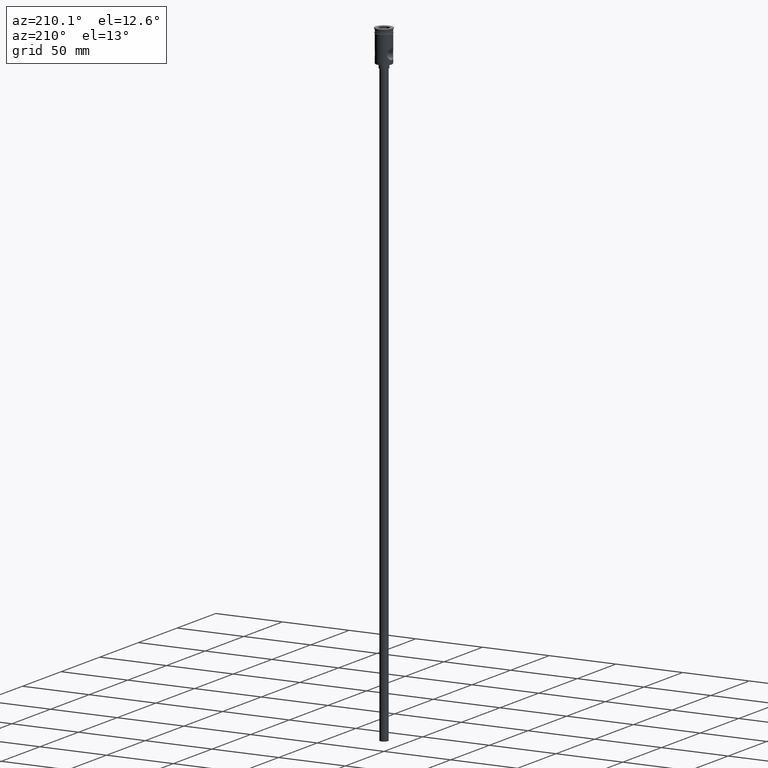
[diagram: clean part render]
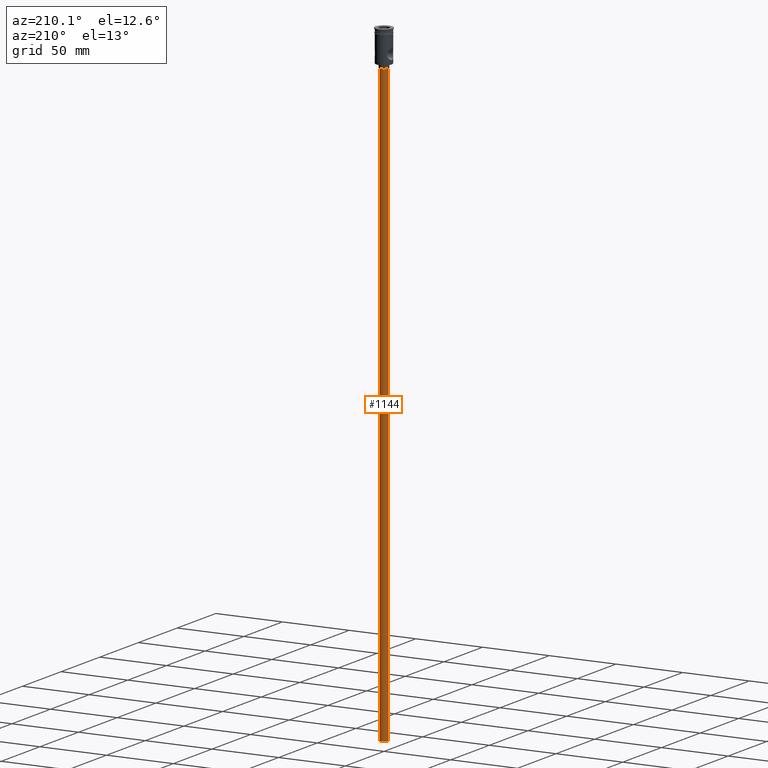
[diagram: same view with one face highlighted and labeled with its STEP entity id]
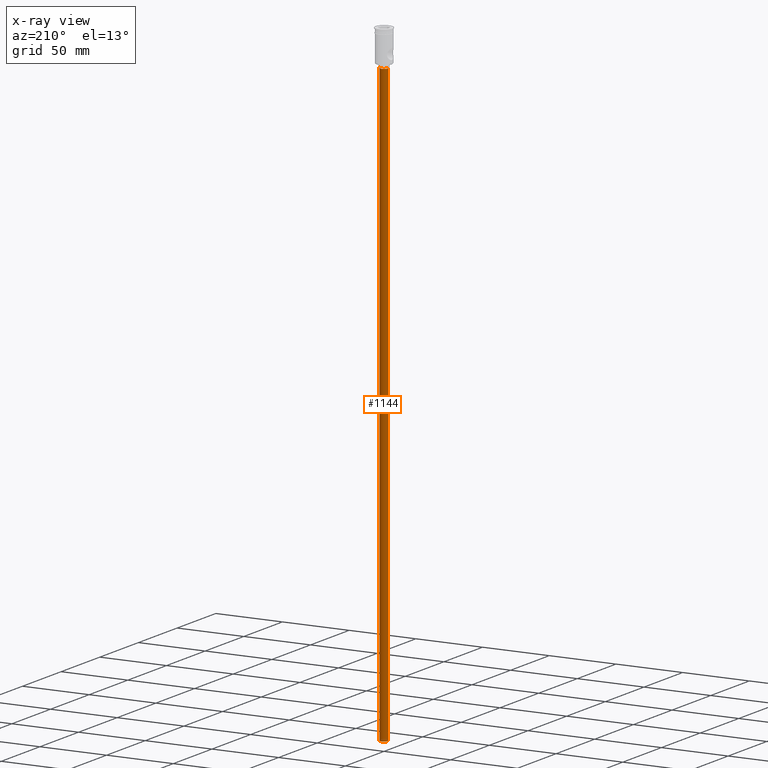
[diagram: x-ray of the same camera — body ghosted, the highlighted face saturated]
A machine part, auxiliary view. The second image highlights one B-rep face of the part: STEP entity #1144.
The next image is the same camera in x-ray: the body ghosted, the highlighted face saturated — about 0% of this face is hidden behind the body in this view.
In plain terms, the highlighted cylindrical surface (edge-blend (fillet) strip) has radius 3 mm, axis along (-0, -0, 1).
Its self-contained STEP definition (entity closure, byte-faithful):
#9 = CARTESIAN_POINT ( 'NONE',  ( 0.000000000000000000, 0.000000000000000000, -474.0000000000000568 ) ) ;
#113 = CARTESIAN_POINT ( 'NONE',  ( 3.000000000000000444, 0.000000000000000000, -474.0000000000000568 ) ) ;
#142 = EDGE_CURVE ( 'NONE', #1049, #320, #1305, .T. ) ;
#231 = CARTESIAN_POINT ( 'NONE',  ( 0.000000000000000000, 0.000000000000000000, -27.00000000000000000 ) ) ;
#301 = DIRECTION ( 'NONE',  ( -0.000000000000000000, -0.000000000000000000, 1.000000000000000000 ) ) ;
#320 = VERTEX_POINT ( 'NONE', #113 ) ;
#411 = VERTEX_POINT ( 'NONE', #1290 ) ;
#447 = FACE_OUTER_BOUND ( 'NONE', #1409, .T. ) ;
#479 = ORIENTED_EDGE ( 'NONE', *, *, #640, .F. ) ;
#498 = VERTEX_POINT ( 'NONE', #975 ) ;
#516 = VECTOR ( 'NONE', #1088, 1000.000000000000000 ) ;
#542 = EDGE_CURVE ( 'NONE', #1049, #411, #545, .T. ) ;
#545 = LINE ( 'NONE', #1009, #922 ) ;
#592 = DIRECTION ( 'NONE',  ( -1.000000000000000000, 0.000000000000000000, 0.000000000000000000 ) ) ;
#620 = CARTESIAN_POINT ( 'NONE',  ( 3.000000000000000444, 0.000000000000000000, -474.0000000000000568 ) ) ;
#640 = EDGE_CURVE ( 'NONE', #320, #498, #761, .T. ) ;
#666 = CARTESIAN_POINT ( 'NONE',  ( 0.000000000000000000, 0.000000000000000000, -474.0000000000000568 ) ) ;
#668 = DIRECTION ( 'NONE',  ( 0.000000000000000000, 0.000000000000000000, -1.000000000000000000 ) ) ;
#701 = AXIS2_PLACEMENT_3D ( 'NONE', #231, #1263, #592 ) ;
#761 = LINE ( 'NONE', #620, #516 ) ;
#774 = DIRECTION ( 'NONE',  ( 1.000000000000000000, 0.000000000000000000, 0.000000000000000000 ) ) ;
#790 = DIRECTION ( 'NONE',  ( -1.000000000000000000, 0.000000000000000000, 0.000000000000000000 ) ) ;
#847 = AXIS2_PLACEMENT_3D ( 'NONE', #9, #668, #790 ) ;
#871 = CARTESIAN_POINT ( 'NONE',  ( -3.000000000000000444, 3.673940397442060361E-16, -474.0000000000000568 ) ) ;
#907 = CYLINDRICAL_SURFACE ( 'NONE', #1302, 3.000000000000000444 ) ;
#908 = EDGE_CURVE ( 'NONE', #411, #498, #1213, .T. ) ;
#922 = VECTOR ( 'NONE', #301, 1000.000000000000000 ) ;
#975 = CARTESIAN_POINT ( 'NONE',  ( 3.000000000000000444, 0.000000000000000000, -27.00000000000000000 ) ) ;
#1009 = CARTESIAN_POINT ( 'NONE',  ( -3.000000000000000444, 3.673940397442060361E-16, -474.0000000000000568 ) ) ;
#1049 = VERTEX_POINT ( 'NONE', #871 ) ;
#1076 = ORIENTED_EDGE ( 'NONE', *, *, #908, .T. ) ;
#1088 = DIRECTION ( 'NONE',  ( -0.000000000000000000, -0.000000000000000000, 1.000000000000000000 ) ) ;
#1128 = ORIENTED_EDGE ( 'NONE', *, *, #542, .T. ) ;
#1144 = ADVANCED_FACE ( 'NONE', ( #447 ), #907, .T. ) ;
#1213 = CIRCLE ( 'NONE', #701, 3.000000000000000444 ) ;
#1245 = DIRECTION ( 'NONE',  ( -0.000000000000000000, -0.000000000000000000, 1.000000000000000000 ) ) ;
#1263 = DIRECTION ( 'NONE',  ( 0.000000000000000000, 0.000000000000000000, -1.000000000000000000 ) ) ;
#1290 = CARTESIAN_POINT ( 'NONE',  ( -3.000000000000000444, 3.673940397442060361E-16, -27.00000000000000000 ) ) ;
#1302 = AXIS2_PLACEMENT_3D ( 'NONE', #666, #1245, #774 ) ;
#1305 = CIRCLE ( 'NONE', #847, 3.000000000000000444 ) ;
#1324 = ORIENTED_EDGE ( 'NONE', *, *, #142, .F. ) ;
#1409 = EDGE_LOOP ( 'NONE', ( #1324, #1128, #1076, #479 ) ) ;